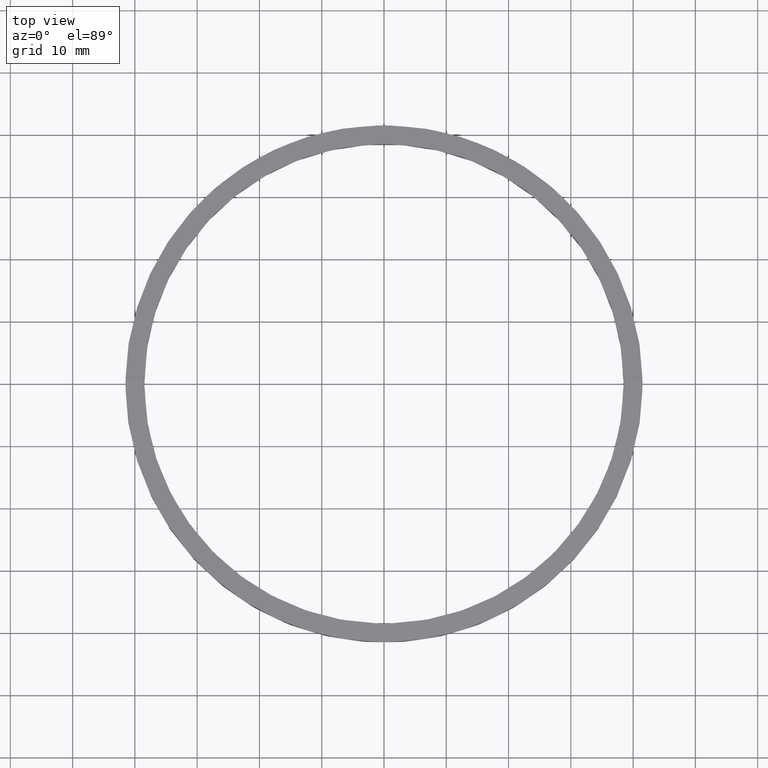
[diagram: clean part render]
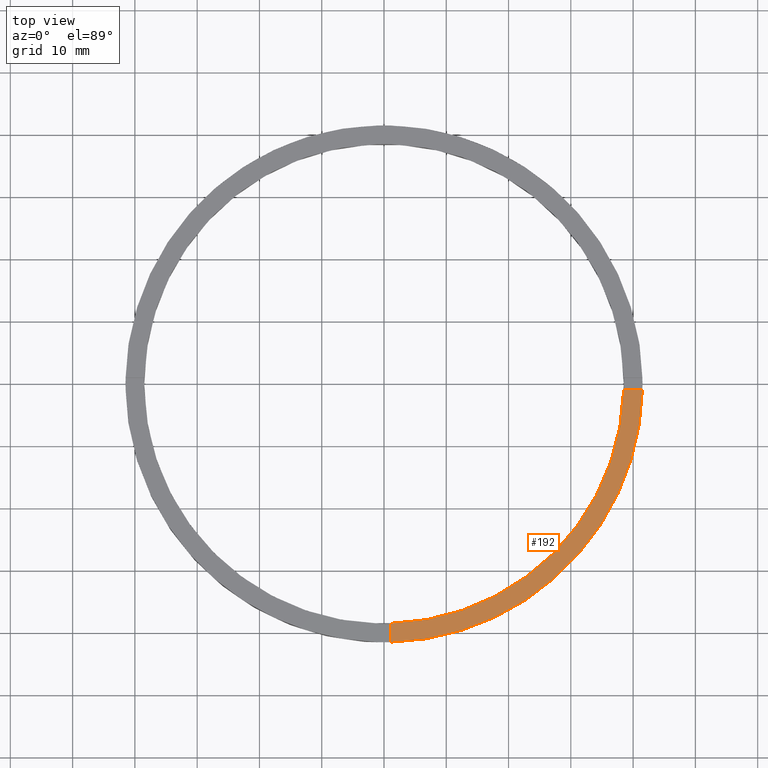
[diagram: same view with one face highlighted and labeled with its STEP entity id]
A machine part, top view. The second image highlights one B-rep face of the part: STEP entity #192.
In plain terms, the highlighted planar face has unit normal (0, 0, 1).
Its self-contained STEP definition (entity closure, byte-faithful):
#9 = CARTESIAN_POINT ( 'NONE',  ( 38.48701079585163143, -1.000000000000156763, 4.000000000000000000 ) ) ;
#11 = PLANE ( 'NONE',  #210 ) ;
#21 = DIRECTION ( 'NONE',  ( 0.000000000000000000, 0.000000000000000000, 1.000000000000000000 ) ) ;
#33 = EDGE_CURVE ( 'NONE', #100, #377, #198, .T. ) ;
#38 = LINE ( 'NONE', #783, #56 ) ;
#39 = CARTESIAN_POINT ( 'NONE',  ( 31.49999999999999289, -1.000000000000157430, 4.000000000000000000 ) ) ;
#42 = CARTESIAN_POINT ( 'NONE',  ( 0.9999999999998406830, -38.48701079585163853, 4.000000000000000000 ) ) ;
#45 = VECTOR ( 'NONE', #125, 1000.000000000000000 ) ;
#56 = VECTOR ( 'NONE', #191, 1000.000000000000000 ) ;
#57 = DIRECTION ( 'NONE',  ( 1.000000000000000000, 0.000000000000000000, -0.000000000000000000 ) ) ;
#92 = DIRECTION ( 'NONE',  ( 1.000000000000000000, 0.000000000000000000, 0.000000000000000000 ) ) ;
#100 = VERTEX_POINT ( 'NONE', #42 ) ;
#124 = ORIENTED_EDGE ( 'NONE', *, *, #773, .F. ) ;
#125 = DIRECTION ( 'NONE',  ( 1.000000000000000000, 6.505213034913025371E-17, 0.000000000000000000 ) ) ;
#147 = CARTESIAN_POINT ( 'NONE',  ( 0.9999999999998411271, -41.48795005781800427, 4.000000000000000000 ) ) ;
#164 = AXIS2_PLACEMENT_3D ( 'NONE', #516, #21, #92 ) ;
#178 = CARTESIAN_POINT ( 'NONE',  ( 41.48795005781799006, -1.000000000000156763, 4.000000000000000000 ) ) ;
#190 = VERTEX_POINT ( 'NONE', #147 ) ;
#191 = DIRECTION ( 'NONE',  ( -1.301042606982605074E-16, 1.000000000000000000, -0.000000000000000000 ) ) ;
#192 = ADVANCED_FACE ( 'NONE', ( #455 ), #11, .T. ) ;
#198 = CIRCLE ( 'NONE', #164, 38.50000000000000000 ) ;
#210 = AXIS2_PLACEMENT_3D ( 'NONE', #555, #689, #57 ) ;
#213 = ORIENTED_EDGE ( 'NONE', *, *, #33, .F. ) ;
#315 = DIRECTION ( 'NONE',  ( 0.000000000000000000, 0.000000000000000000, 1.000000000000000000 ) ) ;
#326 = CIRCLE ( 'NONE', #470, 41.50000000000000000 ) ;
#330 = CARTESIAN_POINT ( 'NONE',  ( 0.000000000000000000, 0.000000000000000000, 4.000000000000000000 ) ) ;
#333 = LINE ( 'NONE', #39, #45 ) ;
#356 = ORIENTED_EDGE ( 'NONE', *, *, #451, .F. ) ;
#377 = VERTEX_POINT ( 'NONE', #9 ) ;
#451 = EDGE_CURVE ( 'NONE', #377, #736, #333, .T. ) ;
#455 = FACE_OUTER_BOUND ( 'NONE', #622, .T. ) ;
#470 = AXIS2_PLACEMENT_3D ( 'NONE', #330, #315, #488 ) ;
#488 = DIRECTION ( 'NONE',  ( 1.000000000000000000, 0.000000000000000000, 0.000000000000000000 ) ) ;
#516 = CARTESIAN_POINT ( 'NONE',  ( 0.000000000000000000, 0.000000000000000000, 4.000000000000000000 ) ) ;
#555 = CARTESIAN_POINT ( 'NONE',  ( 0.000000000000000000, 0.000000000000000000, 4.000000000000000000 ) ) ;
#622 = EDGE_LOOP ( 'NONE', ( #356, #213, #124, #671 ) ) ;
#651 = EDGE_CURVE ( 'NONE', #190, #736, #326, .T. ) ;
#671 = ORIENTED_EDGE ( 'NONE', *, *, #651, .T. ) ;
#689 = DIRECTION ( 'NONE',  ( 0.000000000000000000, 0.000000000000000000, 1.000000000000000000 ) ) ;
#736 = VERTEX_POINT ( 'NONE', #178 ) ;
#773 = EDGE_CURVE ( 'NONE', #190, #100, #38, .T. ) ;
#783 = CARTESIAN_POINT ( 'NONE',  ( 0.9999999999998397948, -31.50000000000018119, 4.000000000000000000 ) ) ;